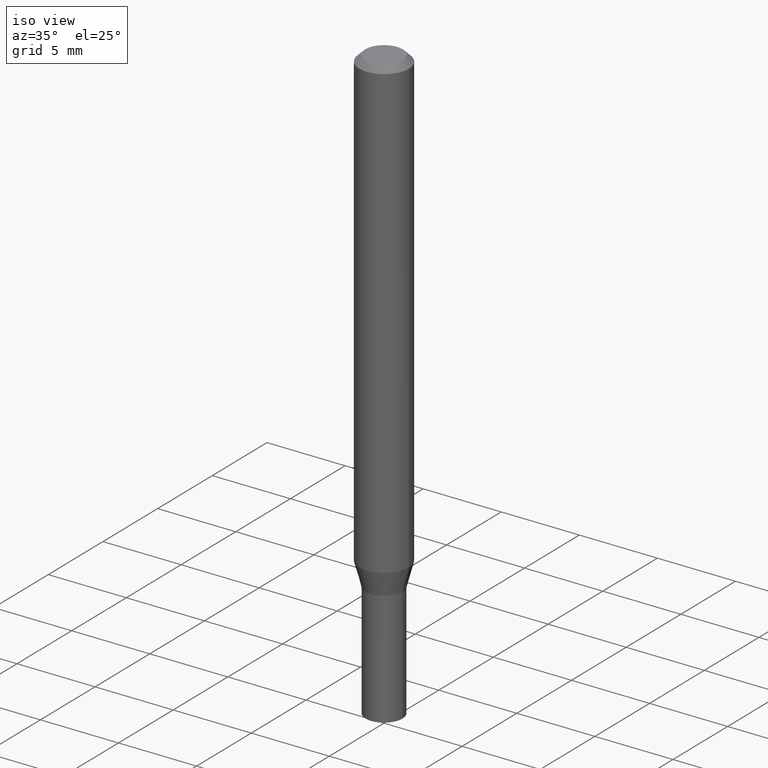
[diagram: clean part render]
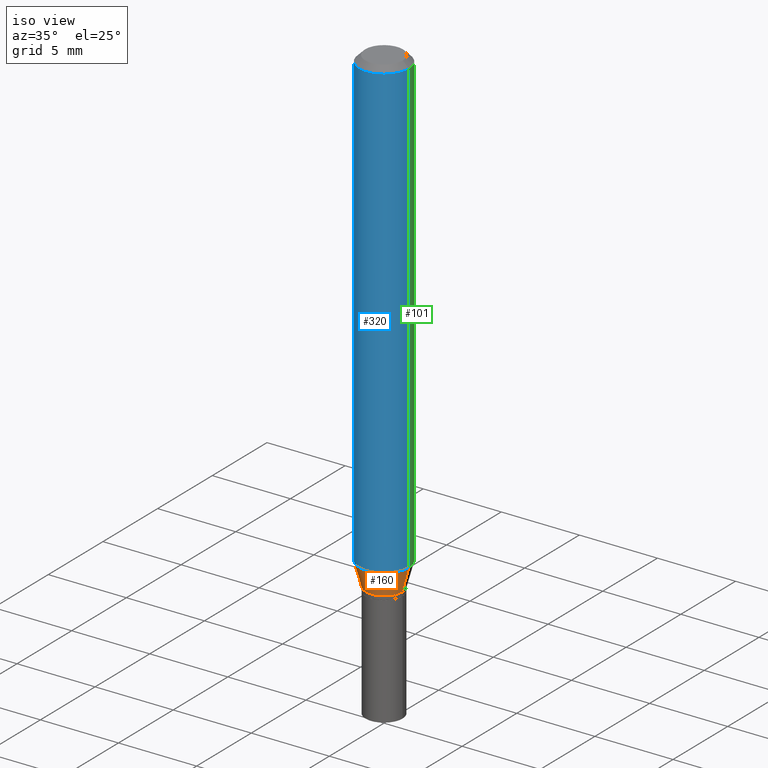
[diagram: same view with three faces highlighted in distinct colors, each labeled with its STEP entity id]
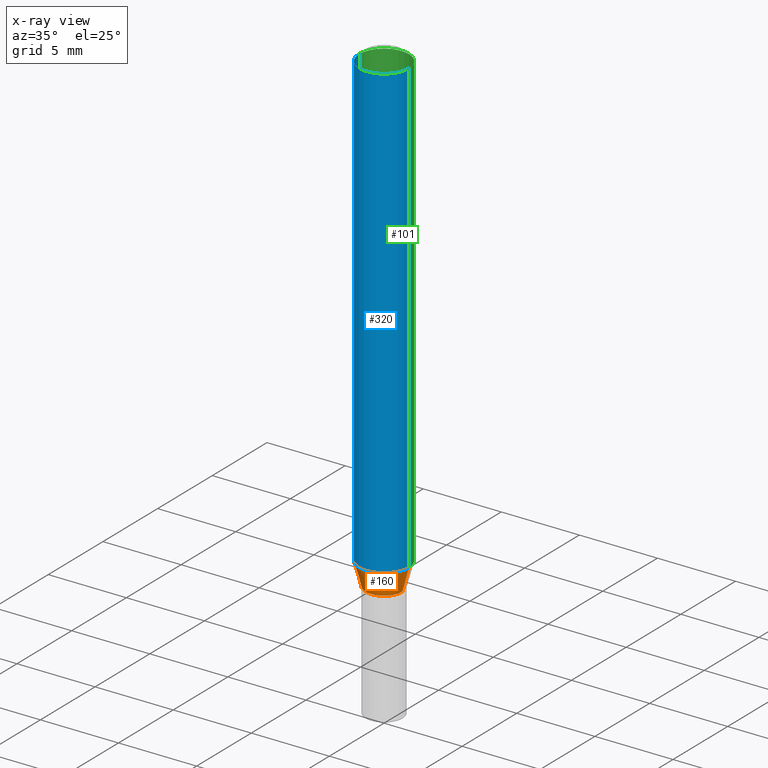
[diagram: x-ray of the same camera — body ghosted, the three highlighted faces saturated]
A machine part, iso view with three faces highlighted in distinct colors.
The next image is the same camera in x-ray (body ghosted, the three faces saturated) — at least one of them is partly hidden behind the body in this view.
Their STEP definitions:

[orange] entity #160 — the highlighted conical surface has half-angle 15 deg.
#10 = VERTEX_POINT ( 'NONE', #198 ) ;
#11 = ORIENTED_EDGE ( 'NONE', *, *, #346, .T. ) ;
#24 = AXIS2_PLACEMENT_3D ( 'NONE', #163, #319, #377 ) ;
#37 = EDGE_CURVE ( 'NONE', #259, #157, #126, .T. ) ;
#45 = LINE ( 'NONE', #306, #350 ) ;
#61 = EDGE_CURVE ( 'NONE', #10, #303, #437, .T. ) ;
#77 = ORIENTED_EDGE ( 'NONE', *, *, #37, .F. ) ;
#126 = CIRCLE ( 'NONE', #24, 0.06250000000000000000 ) ;
#134 = CONICAL_SURFACE ( 'NONE', #283, 0.04650000000000006906, 0.2617993877991490193 ) ;
#140 = ORIENTED_EDGE ( 'NONE', *, *, #352, .F. ) ;
#144 = EDGE_LOOP ( 'NONE', ( #140, #373, #11, #77 ) ) ;
#148 = CARTESIAN_POINT ( 'NONE',  ( -0.04650000000000006906, -3.897781529210603185E-15, -1.211000000000000076 ) ) ;
#157 = VERTEX_POINT ( 'NONE', #236 ) ;
#159 = DIRECTION ( 'NONE',  ( 1.000000000000000000, -6.982962677686269866E-15, 0.000000000000000000 ) ) ;
#160 = ADVANCED_FACE ( 'NONE', ( #416 ), #134, .T. ) ;
#163 = CARTESIAN_POINT ( 'NONE',  ( 2.815436902962077376E-29, -4.019697729335190464E-15, -1.151287187078898322 ) ) ;
#173 = CARTESIAN_POINT ( 'NONE',  ( 0.04650000000000006906, -4.552891665851461956E-15, -1.211000000000000076 ) ) ;
#184 = DIRECTION ( 'NONE',  ( -0.2588190451025203509, 5.211531920934543942E-15, 0.9659258262890684232 ) ) ;
#198 = CARTESIAN_POINT ( 'NONE',  ( -0.04650000000000006906, -3.736695024347865517E-15, -1.211000000000000076 ) ) ;
#233 = DIRECTION ( 'NONE',  ( -2.445468806185136597E-29, 3.491481338843145583E-15, 1.000000000000000000 ) ) ;
#236 = CARTESIAN_POINT ( 'NONE',  ( 0.06250000000000000000, -4.456132896690582134E-15, -1.151287187078898322 ) ) ;
#238 = DIRECTION ( 'NONE',  ( 1.000000000000000000, -6.982962677686269866E-15, 0.000000000000000000 ) ) ;
#241 = CARTESIAN_POINT ( 'NONE',  ( 2.961462724290200728E-29, -4.228183901339049671E-15, -1.211000000000000076 ) ) ;
#255 = CARTESIAN_POINT ( 'NONE',  ( -0.06250000000000000000, -3.575608519485128637E-15, -1.151287187078898322 ) ) ;
#259 = VERTEX_POINT ( 'NONE', #255 ) ;
#283 = AXIS2_PLACEMENT_3D ( 'NONE', #241, #380, #159 ) ;
#291 = AXIS2_PLACEMENT_3D ( 'NONE', #447, #233, #238 ) ;
#302 = LINE ( 'NONE', #148, #307 ) ;
#303 = VERTEX_POINT ( 'NONE', #173 ) ;
#306 = CARTESIAN_POINT ( 'NONE',  ( 0.04650000000000006906, -4.552891665851461956E-15, -1.211000000000000076 ) ) ;
#307 = VECTOR ( 'NONE', #184, 39.37007874015748143 ) ;
#319 = DIRECTION ( 'NONE',  ( -2.445468806185136597E-29, 3.491481338843145583E-15, 1.000000000000000000 ) ) ;
#346 = EDGE_CURVE ( 'NONE', #303, #157, #45, .T. ) ;
#350 = VECTOR ( 'NONE', #368, 39.37007874015748143 ) ;
#352 = EDGE_CURVE ( 'NONE', #10, #259, #302, .T. ) ;
#368 = DIRECTION ( 'NONE',  ( 0.2588190451025203509, 1.565188264969630053E-15, 0.9659258262890684232 ) ) ;
#373 = ORIENTED_EDGE ( 'NONE', *, *, #61, .T. ) ;
#377 = DIRECTION ( 'NONE',  ( 1.000000000000000000, -6.982962677686262766E-15, 0.000000000000000000 ) ) ;
#380 = DIRECTION ( 'NONE',  ( -2.445468806185136597E-29, 3.491481338843145583E-15, 1.000000000000000000 ) ) ;
#416 = FACE_OUTER_BOUND ( 'NONE', #144, .T. ) ;
#437 = CIRCLE ( 'NONE', #291, 0.04650000000000006906 ) ;
#447 = CARTESIAN_POINT ( 'NONE',  ( 2.961462724290200728E-29, -4.228183901339049671E-15, -1.211000000000000076 ) ) ;

[blue] entity #320 — the highlighted cylindrical surface (edge-blend (fillet) strip) has radius 1.5875 mm, axis along (-0, 0, 1).
#7 = VERTEX_POINT ( 'NONE', #57 ) ;
#12 = AXIS2_PLACEMENT_3D ( 'NONE', #166, #412, #452 ) ;
#24 = AXIS2_PLACEMENT_3D ( 'NONE', #163, #319, #377 ) ;
#31 = VECTOR ( 'NONE', #275, 39.37007874015748143 ) ;
#32 = VERTEX_POINT ( 'NONE', #279 ) ;
#37 = EDGE_CURVE ( 'NONE', #259, #157, #126, .T. ) ;
#57 = CARTESIAN_POINT ( 'NONE',  ( -0.06250000000000000000, -1.591945764858856353E-15, -0.01499999999999999944 ) ) ;
#62 = CARTESIAN_POINT ( 'NONE',  ( 0.000000000000000000, 0.000000000000000000, 0.000000000000000000 ) ) ;
#70 = LINE ( 'NONE', #397, #181 ) ;
#72 = CIRCLE ( 'NONE', #12, 0.06250000000000000000 ) ;
#105 = EDGE_CURVE ( 'NONE', #7, #32, #72, .T. ) ;
#106 = DIRECTION ( 'NONE',  ( -2.445468806185136877E-29, 3.491481338843145188E-15, 1.000000000000000000 ) ) ;
#122 = EDGE_CURVE ( 'NONE', #157, #32, #311, .T. ) ;
#126 = CIRCLE ( 'NONE', #24, 0.06250000000000000000 ) ;
#137 = CYLINDRICAL_SURFACE ( 'NONE', #375, 0.06250000000000000000 ) ;
#142 = DIRECTION ( 'NONE',  ( -2.445468806185136597E-29, 3.491481338843145583E-15, 1.000000000000000000 ) ) ;
#157 = VERTEX_POINT ( 'NONE', #236 ) ;
#163 = CARTESIAN_POINT ( 'NONE',  ( 2.815436902962077376E-29, -4.019697729335190464E-15, -1.151287187078898322 ) ) ;
#166 = CARTESIAN_POINT ( 'NONE',  ( 3.668203209277705088E-31, -5.237222008264718399E-17, -0.01499999999999999944 ) ) ;
#181 = VECTOR ( 'NONE', #106, 39.37007874015748143 ) ;
#183 = DIRECTION ( 'NONE',  ( 1.000000000000000000, -6.982962677686266711E-15, 4.876176775795935793E-29 ) ) ;
#191 = EDGE_LOOP ( 'NONE', ( #264, #298, #364, #394 ) ) ;
#236 = CARTESIAN_POINT ( 'NONE',  ( 0.06250000000000000000, -4.456132896690582134E-15, -1.151287187078898322 ) ) ;
#255 = CARTESIAN_POINT ( 'NONE',  ( -0.06250000000000000000, -3.575608519485128637E-15, -1.151287187078898322 ) ) ;
#259 = VERTEX_POINT ( 'NONE', #255 ) ;
#264 = ORIENTED_EDGE ( 'NONE', *, *, #440, .F. ) ;
#275 = DIRECTION ( 'NONE',  ( -2.445468806185136877E-29, 3.491481338843145188E-15, 1.000000000000000000 ) ) ;
#279 = CARTESIAN_POINT ( 'NONE',  ( 0.06250000000000000000, -4.888073874380388472E-16, -0.01499999999999999944 ) ) ;
#298 = ORIENTED_EDGE ( 'NONE', *, *, #37, .T. ) ;
#311 = LINE ( 'NONE', #344, #31 ) ;
#319 = DIRECTION ( 'NONE',  ( -2.445468806185136597E-29, 3.491481338843145583E-15, 1.000000000000000000 ) ) ;
#320 = ADVANCED_FACE ( 'NONE', ( #460 ), #137, .T. ) ;
#344 = CARTESIAN_POINT ( 'NONE',  ( 0.06250000000000000000, -4.364351673553916694E-16, 3.047610484872459871E-30 ) ) ;
#364 = ORIENTED_EDGE ( 'NONE', *, *, #122, .T. ) ;
#375 = AXIS2_PLACEMENT_3D ( 'NONE', #62, #142, #183 ) ;
#377 = DIRECTION ( 'NONE',  ( 1.000000000000000000, -6.982962677686262766E-15, 0.000000000000000000 ) ) ;
#394 = ORIENTED_EDGE ( 'NONE', *, *, #105, .F. ) ;
#397 = CARTESIAN_POINT ( 'NONE',  ( -0.06250000000000000000, 4.440892098500626162E-16, -3.074334431409316114E-30 ) ) ;
#412 = DIRECTION ( 'NONE',  ( -2.445468806185136597E-29, 3.491481338843145583E-15, 1.000000000000000000 ) ) ;
#440 = EDGE_CURVE ( 'NONE', #259, #7, #70, .T. ) ;
#452 = DIRECTION ( 'NONE',  ( 1.000000000000000000, -6.982962677686266711E-15, 0.000000000000000000 ) ) ;
#460 = FACE_OUTER_BOUND ( 'NONE', #191, .T. ) ;

[green] entity #101 — the highlighted cylindrical surface (edge-blend (fillet) strip) has radius 1.5875 mm, axis along (-0, 0, 1).
#7 = VERTEX_POINT ( 'NONE', #57 ) ;
#31 = VECTOR ( 'NONE', #275, 39.37007874015748143 ) ;
#32 = VERTEX_POINT ( 'NONE', #279 ) ;
#36 = ORIENTED_EDGE ( 'NONE', *, *, #386, .F. ) ;
#52 = FACE_OUTER_BOUND ( 'NONE', #301, .T. ) ;
#57 = CARTESIAN_POINT ( 'NONE',  ( -0.06250000000000000000, -1.591945764858856353E-15, -0.01499999999999999944 ) ) ;
#65 = CIRCLE ( 'NONE', #343, 0.06250000000000000000 ) ;
#70 = LINE ( 'NONE', #397, #181 ) ;
#87 = CARTESIAN_POINT ( 'NONE',  ( 2.815436902962077376E-29, -4.019697729335190464E-15, -1.151287187078898322 ) ) ;
#89 = DIRECTION ( 'NONE',  ( -2.445468806185136597E-29, 3.491481338843145583E-15, 1.000000000000000000 ) ) ;
#101 = ADVANCED_FACE ( 'NONE', ( #52 ), #161, .T. ) ;
#106 = DIRECTION ( 'NONE',  ( -2.445468806185136877E-29, 3.491481338843145188E-15, 1.000000000000000000 ) ) ;
#121 = DIRECTION ( 'NONE',  ( -2.445468806185136597E-29, 3.491481338843145583E-15, 1.000000000000000000 ) ) ;
#122 = EDGE_CURVE ( 'NONE', #157, #32, #311, .T. ) ;
#133 = CARTESIAN_POINT ( 'NONE',  ( 0.000000000000000000, 0.000000000000000000, 0.000000000000000000 ) ) ;
#145 = EDGE_CURVE ( 'NONE', #157, #259, #65, .T. ) ;
#147 = ORIENTED_EDGE ( 'NONE', *, *, #145, .T. ) ;
#157 = VERTEX_POINT ( 'NONE', #236 ) ;
#161 = CYLINDRICAL_SURFACE ( 'NONE', #400, 0.06250000000000000000 ) ;
#164 = CIRCLE ( 'NONE', #423, 0.06250000000000000000 ) ;
#181 = VECTOR ( 'NONE', #106, 39.37007874015748143 ) ;
#236 = CARTESIAN_POINT ( 'NONE',  ( 0.06250000000000000000, -4.456132896690582134E-15, -1.151287187078898322 ) ) ;
#255 = CARTESIAN_POINT ( 'NONE',  ( -0.06250000000000000000, -3.575608519485128637E-15, -1.151287187078898322 ) ) ;
#258 = DIRECTION ( 'NONE',  ( 1.000000000000000000, -6.982962677686266711E-15, 0.000000000000000000 ) ) ;
#259 = VERTEX_POINT ( 'NONE', #255 ) ;
#275 = DIRECTION ( 'NONE',  ( -2.445468806185136877E-29, 3.491481338843145188E-15, 1.000000000000000000 ) ) ;
#279 = CARTESIAN_POINT ( 'NONE',  ( 0.06250000000000000000, -4.888073874380388472E-16, -0.01499999999999999944 ) ) ;
#282 = DIRECTION ( 'NONE',  ( 1.000000000000000000, -6.982962677686262766E-15, 0.000000000000000000 ) ) ;
#301 = EDGE_LOOP ( 'NONE', ( #147, #341, #36, #334 ) ) ;
#311 = LINE ( 'NONE', #344, #31 ) ;
#334 = ORIENTED_EDGE ( 'NONE', *, *, #122, .F. ) ;
#341 = ORIENTED_EDGE ( 'NONE', *, *, #440, .T. ) ;
#343 = AXIS2_PLACEMENT_3D ( 'NONE', #87, #121, #282 ) ;
#344 = CARTESIAN_POINT ( 'NONE',  ( 0.06250000000000000000, -4.364351673553916694E-16, 3.047610484872459871E-30 ) ) ;
#363 = DIRECTION ( 'NONE',  ( -2.445468806185136597E-29, 3.491481338843145583E-15, 1.000000000000000000 ) ) ;
#386 = EDGE_CURVE ( 'NONE', #32, #7, #164, .T. ) ;
#397 = CARTESIAN_POINT ( 'NONE',  ( -0.06250000000000000000, 4.440892098500626162E-16, -3.074334431409316114E-30 ) ) ;
#400 = AXIS2_PLACEMENT_3D ( 'NONE', #133, #89, #414 ) ;
#414 = DIRECTION ( 'NONE',  ( 1.000000000000000000, -6.982962677686266711E-15, 4.876176775795935793E-29 ) ) ;
#423 = AXIS2_PLACEMENT_3D ( 'NONE', #432, #363, #258 ) ;
#432 = CARTESIAN_POINT ( 'NONE',  ( 3.668203209277705088E-31, -5.237222008264718399E-17, -0.01499999999999999944 ) ) ;
#440 = EDGE_CURVE ( 'NONE', #259, #7, #70, .T. ) ;